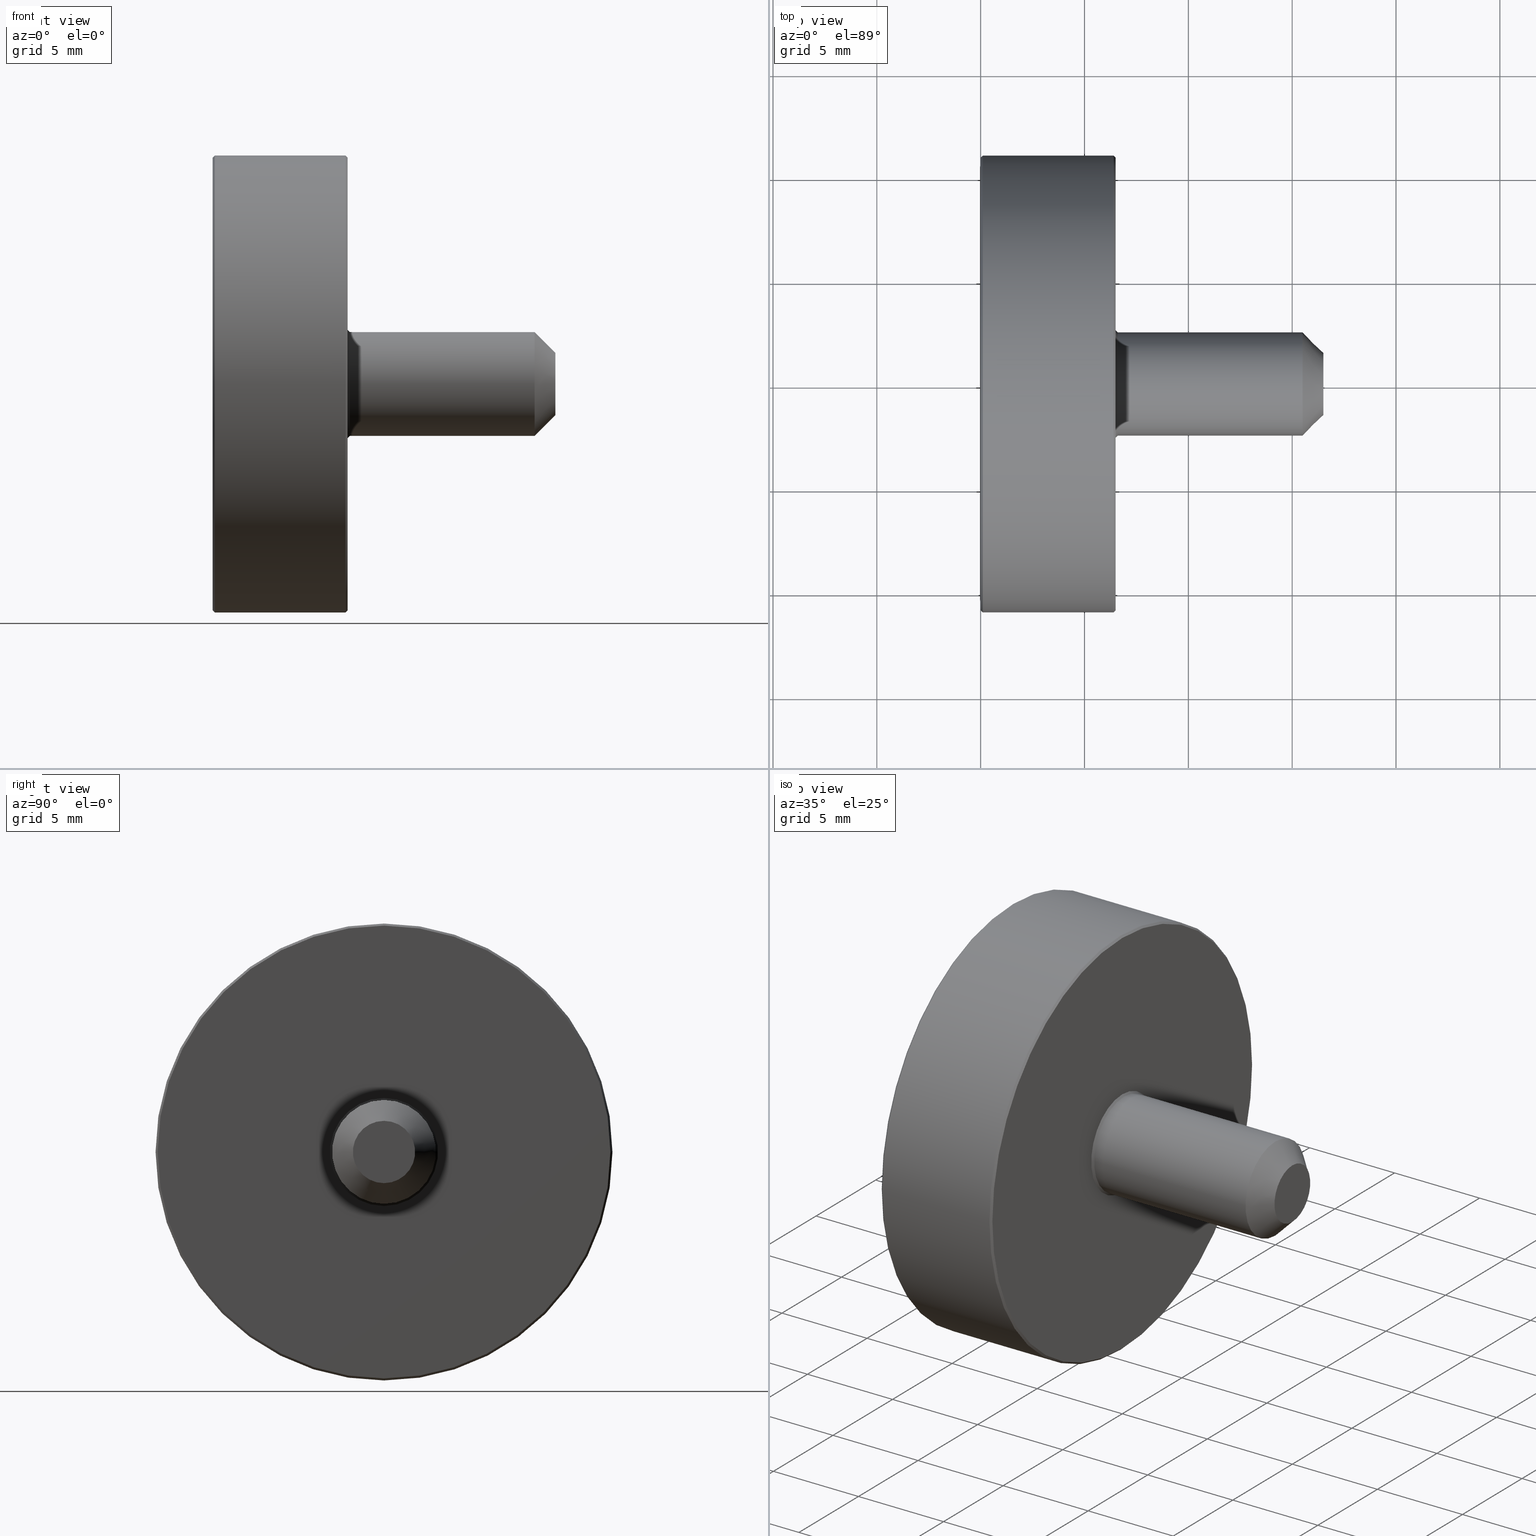
[diagram: canonical four-view strip — front | top / right | iso, engineering-drawing reading convention]
A machine part, canonical four-view strip (front | top / right | iso — engineering-drawing reading convention). The complete STEP part file that produces these views, byte-faithful:
ISO-10303-21;
HEADER;
/* Generated by software containing ST-Developer
 * from STEP Tools, Inc. (www.steptools.com) 
 */

FILE_DESCRIPTION(
/* description */ ('RISCONTRO C/MAGNETE NEO 12X2mm'),
/* implementation_level */ '2;1');

FILE_NAME(
/* name */ 
'Q:\\Catalogo\\2_Accessori Dierre\\Per Download Web e catalogo cartace
o\\CATALOGO ACCESSORI PER RIPARI\\PAGINA 68\\CMGRS0000001.stp',
/* time_stamp */ '2018-11-07T12:30:45+01:00',
/* author */ ('fzagni'),
/* organization */ (''),
/* preprocessor_version */ 'ST-DEVELOPER v16.1',
/* originating_system */ 'Autodesk Inventor 2016',
/* authorisation */ '');

FILE_SCHEMA (('AUTOMOTIVE_DESIGN { 1 0 10303 214 3 1 1 }'));
ENDSEC;

DATA;
#10=MECHANICAL_DESIGN_GEOMETRIC_PRESENTATION_REPRESENTATION('',(#13),#229);
#11=SHAPE_REPRESENTATION_RELATIONSHIP('SRR','None',#238,#12);
#12=ADVANCED_BREP_SHAPE_REPRESENTATION('',(#14),#228);
#13=STYLED_ITEM('',(#247),#14);
#14=MANIFOLD_SOLID_BREP('Solido1',#127);
#15=CYLINDRICAL_SURFACE('',#134,2.5);
#16=CYLINDRICAL_SURFACE('',#136,6.);
#17=CYLINDRICAL_SURFACE('',#142,11.);
#18=PLANE('',#132);
#19=PLANE('',#139);
#20=PLANE('',#146);
#21=PLANE('',#149);
#22=FACE_BOUND('',#43,.T.);
#23=FACE_BOUND('',#45,.T.);
#24=FACE_BOUND('',#47,.T.);
#25=FACE_BOUND('',#49,.T.);
#26=FACE_BOUND('',#52,.T.);
#27=FACE_BOUND('',#54,.T.);
#28=FACE_BOUND('',#56,.T.);
#29=FACE_BOUND('',#58,.T.);
#30=FACE_BOUND('',#60,.T.);
#31=FACE_OUTER_BOUND('',#42,.T.);
#32=FACE_OUTER_BOUND('',#44,.T.);
#33=FACE_OUTER_BOUND('',#46,.T.);
#34=FACE_OUTER_BOUND('',#48,.T.);
#35=FACE_OUTER_BOUND('',#50,.T.);
#36=FACE_OUTER_BOUND('',#51,.T.);
#37=FACE_OUTER_BOUND('',#53,.T.);
#38=FACE_OUTER_BOUND('',#55,.T.);
#39=FACE_OUTER_BOUND('',#57,.T.);
#40=FACE_OUTER_BOUND('',#59,.T.);
#41=FACE_OUTER_BOUND('',#61,.T.);
#42=EDGE_LOOP('',(#92));
#43=EDGE_LOOP('',(#93));
#44=EDGE_LOOP('',(#94));
#45=EDGE_LOOP('',(#95));
#46=EDGE_LOOP('',(#96));
#47=EDGE_LOOP('',(#97));
#48=EDGE_LOOP('',(#98));
#49=EDGE_LOOP('',(#99));
#50=EDGE_LOOP('',(#100));
#51=EDGE_LOOP('',(#101));
#52=EDGE_LOOP('',(#102));
#53=EDGE_LOOP('',(#103));
#54=EDGE_LOOP('',(#104));
#55=EDGE_LOOP('',(#105));
#56=EDGE_LOOP('',(#106));
#57=EDGE_LOOP('',(#107));
#58=EDGE_LOOP('',(#108));
#59=EDGE_LOOP('',(#109));
#60=EDGE_LOOP('',(#110));
#61=EDGE_LOOP('',(#111));
#62=CIRCLE('',#130,2.5);
#63=CIRCLE('',#131,2.6);
#64=CIRCLE('',#133,10.9);
#65=CIRCLE('',#135,2.5);
#66=CIRCLE('',#137,6.);
#67=CIRCLE('',#138,6.);
#68=CIRCLE('',#141,11.);
#69=CIRCLE('',#143,11.);
#70=CIRCLE('',#145,10.9);
#71=CIRCLE('',#148,1.5);
#72=VERTEX_POINT('',#196);
#73=VERTEX_POINT('',#198);
#74=VERTEX_POINT('',#201);
#75=VERTEX_POINT('',#204);
#76=VERTEX_POINT('',#207);
#77=VERTEX_POINT('',#209);
#78=VERTEX_POINT('',#213);
#79=VERTEX_POINT('',#216);
#80=VERTEX_POINT('',#219);
#81=VERTEX_POINT('',#223);
#82=EDGE_CURVE('',#72,#72,#62,.T.);
#83=EDGE_CURVE('',#73,#73,#63,.T.);
#84=EDGE_CURVE('',#74,#74,#64,.T.);
#85=EDGE_CURVE('',#75,#75,#65,.T.);
#86=EDGE_CURVE('',#76,#76,#66,.T.);
#87=EDGE_CURVE('',#77,#77,#67,.T.);
#88=EDGE_CURVE('',#78,#78,#68,.T.);
#89=EDGE_CURVE('',#79,#79,#69,.T.);
#90=EDGE_CURVE('',#80,#80,#70,.T.);
#91=EDGE_CURVE('',#81,#81,#71,.T.);
#92=ORIENTED_EDGE('',*,*,#82,.T.);
#93=ORIENTED_EDGE('',*,*,#83,.T.);
#94=ORIENTED_EDGE('',*,*,#84,.F.);
#95=ORIENTED_EDGE('',*,*,#83,.F.);
#96=ORIENTED_EDGE('',*,*,#85,.F.);
#97=ORIENTED_EDGE('',*,*,#82,.F.);
#98=ORIENTED_EDGE('',*,*,#86,.T.);
#99=ORIENTED_EDGE('',*,*,#87,.F.);
#100=ORIENTED_EDGE('',*,*,#86,.F.);
#101=ORIENTED_EDGE('',*,*,#88,.T.);
#102=ORIENTED_EDGE('',*,*,#84,.T.);
#103=ORIENTED_EDGE('',*,*,#89,.F.);
#104=ORIENTED_EDGE('',*,*,#88,.F.);
#105=ORIENTED_EDGE('',*,*,#89,.T.);
#106=ORIENTED_EDGE('',*,*,#90,.T.);
#107=ORIENTED_EDGE('',*,*,#90,.F.);
#108=ORIENTED_EDGE('',*,*,#87,.T.);
#109=ORIENTED_EDGE('',*,*,#85,.T.);
#110=ORIENTED_EDGE('',*,*,#91,.T.);
#111=ORIENTED_EDGE('',*,*,#91,.F.);
#112=CONICAL_SURFACE('',#129,2.55,45.);
#113=CONICAL_SURFACE('',#140,10.95,45.);
#114=CONICAL_SURFACE('',#144,10.95,45.);
#115=CONICAL_SURFACE('',#147,2.,45.);
#116=ADVANCED_FACE('',(#31,#22),#112,.T.);
#117=ADVANCED_FACE('',(#32,#23),#18,.T.);
#118=ADVANCED_FACE('',(#33,#24),#15,.T.);
#119=ADVANCED_FACE('',(#34,#25),#16,.F.);
#120=ADVANCED_FACE('',(#35),#19,.F.);
#121=ADVANCED_FACE('',(#36,#26),#113,.T.);
#122=ADVANCED_FACE('',(#37,#27),#17,.T.);
#123=ADVANCED_FACE('',(#38,#28),#114,.T.);
#124=ADVANCED_FACE('',(#39,#29),#20,.F.);
#125=ADVANCED_FACE('',(#40,#30),#115,.T.);
#126=ADVANCED_FACE('',(#41),#21,.T.);
#127=CLOSED_SHELL('',(#116,#117,#118,#119,#120,#121,#122,#123,#124,#125,
#126));
#128=AXIS2_PLACEMENT_3D('placement',#194,#150,#151);
#129=AXIS2_PLACEMENT_3D('',#195,#152,#153);
#130=AXIS2_PLACEMENT_3D('',#197,#154,#155);
#131=AXIS2_PLACEMENT_3D('',#199,#156,#157);
#132=AXIS2_PLACEMENT_3D('',#200,#158,#159);
#133=AXIS2_PLACEMENT_3D('',#202,#160,#161);
#134=AXIS2_PLACEMENT_3D('',#203,#162,#163);
#135=AXIS2_PLACEMENT_3D('',#205,#164,#165);
#136=AXIS2_PLACEMENT_3D('',#206,#166,#167);
#137=AXIS2_PLACEMENT_3D('',#208,#168,#169);
#138=AXIS2_PLACEMENT_3D('',#210,#170,#171);
#139=AXIS2_PLACEMENT_3D('',#211,#172,#173);
#140=AXIS2_PLACEMENT_3D('',#212,#174,#175);
#141=AXIS2_PLACEMENT_3D('',#214,#176,#177);
#142=AXIS2_PLACEMENT_3D('',#215,#178,#179);
#143=AXIS2_PLACEMENT_3D('',#217,#180,#181);
#144=AXIS2_PLACEMENT_3D('',#218,#182,#183);
#145=AXIS2_PLACEMENT_3D('',#220,#184,#185);
#146=AXIS2_PLACEMENT_3D('',#221,#186,#187);
#147=AXIS2_PLACEMENT_3D('',#222,#188,#189);
#148=AXIS2_PLACEMENT_3D('',#224,#190,#191);
#149=AXIS2_PLACEMENT_3D('',#225,#192,#193);
#150=DIRECTION('axis',(0.,0.,1.));
#151=DIRECTION('refdir',(1.,0.,0.));
#152=DIRECTION('center_axis',(-1.,0.,0.));
#153=DIRECTION('ref_axis',(0.,0.,1.));
#154=DIRECTION('center_axis',(-1.,0.,0.));
#155=DIRECTION('ref_axis',(0.,0.,1.));
#156=DIRECTION('center_axis',(1.,0.,0.));
#157=DIRECTION('ref_axis',(0.,0.,1.));
#158=DIRECTION('center_axis',(1.,0.,0.));
#159=DIRECTION('ref_axis',(0.,0.,-1.));
#160=DIRECTION('center_axis',(-1.,0.,0.));
#161=DIRECTION('ref_axis',(0.,-1.,0.));
#162=DIRECTION('center_axis',(1.,0.,0.));
#163=DIRECTION('ref_axis',(0.,0.,1.));
#164=DIRECTION('center_axis',(1.,0.,0.));
#165=DIRECTION('ref_axis',(0.,0.,1.));
#166=DIRECTION('center_axis',(1.,0.,0.));
#167=DIRECTION('ref_axis',(0.,0.,-1.));
#168=DIRECTION('center_axis',(1.,0.,0.));
#169=DIRECTION('ref_axis',(0.,0.,-1.));
#170=DIRECTION('center_axis',(1.,0.,0.));
#171=DIRECTION('ref_axis',(0.,0.,-1.));
#172=DIRECTION('center_axis',(1.,0.,0.));
#173=DIRECTION('ref_axis',(0.,0.,-1.));
#174=DIRECTION('center_axis',(-1.,0.,0.));
#175=DIRECTION('ref_axis',(0.,-1.,0.));
#176=DIRECTION('center_axis',(1.,0.,0.));
#177=DIRECTION('ref_axis',(0.,-1.,0.));
#178=DIRECTION('center_axis',(1.,0.,0.));
#179=DIRECTION('ref_axis',(0.,-1.,0.));
#180=DIRECTION('center_axis',(-1.,0.,0.));
#181=DIRECTION('ref_axis',(0.,-1.,0.));
#182=DIRECTION('center_axis',(1.,0.,0.));
#183=DIRECTION('ref_axis',(0.,-1.,0.));
#184=DIRECTION('center_axis',(1.,0.,0.));
#185=DIRECTION('ref_axis',(0.,-1.,0.));
#186=DIRECTION('center_axis',(1.,0.,0.));
#187=DIRECTION('ref_axis',(0.,0.,-1.));
#188=DIRECTION('center_axis',(-1.,0.,0.));
#189=DIRECTION('ref_axis',(0.,0.,1.));
#190=DIRECTION('center_axis',(-1.,0.,0.));
#191=DIRECTION('ref_axis',(0.,0.,1.));
#192=DIRECTION('center_axis',(1.,0.,0.));
#193=DIRECTION('ref_axis',(0.,0.,-1.));
#194=CARTESIAN_POINT('',(0.,0.,0.));
#195=CARTESIAN_POINT('Origin',(6.55,0.,0.));
#196=CARTESIAN_POINT('',(6.6,-3.06161699786838E-16,-2.5));
#197=CARTESIAN_POINT('Origin',(6.6,0.,0.));
#198=CARTESIAN_POINT('',(6.5,3.18408167778312E-16,-2.6));
#199=CARTESIAN_POINT('Origin',(6.5,0.,0.));
#200=CARTESIAN_POINT('Origin',(6.5,-4.48690509505221E-16,1.6821560979169E-16));
#201=CARTESIAN_POINT('',(6.5,10.9,-1.33486501107062E-15));
#202=CARTESIAN_POINT('Origin',(6.5,0.,0.));
#203=CARTESIAN_POINT('Origin',(6.5,0.,0.));
#204=CARTESIAN_POINT('',(15.5,3.06161699786838E-16,-2.5));
#205=CARTESIAN_POINT('Origin',(15.5,0.,0.));
#206=CARTESIAN_POINT('Origin',(0.,0.,0.));
#207=CARTESIAN_POINT('',(0.05,7.34788079488412E-16,6.));
#208=CARTESIAN_POINT('Origin',(0.05,0.,0.));
#209=CARTESIAN_POINT('',(0.,7.34788079488412E-16,6.));
#210=CARTESIAN_POINT('Origin',(0.,0.,0.));
#211=CARTESIAN_POINT('Origin',(0.05,-1.54197642309049E-16,-3.69627624575467E-16));
#212=CARTESIAN_POINT('Origin',(6.45,0.,0.));
#213=CARTESIAN_POINT('',(6.4,11.,1.34711147906209E-15));
#214=CARTESIAN_POINT('Origin',(6.4,0.,0.));
#215=CARTESIAN_POINT('Origin',(0.,0.,0.));
#216=CARTESIAN_POINT('',(0.1,11.,-1.34711147906209E-15));
#217=CARTESIAN_POINT('Origin',(0.1,0.,0.));
#218=CARTESIAN_POINT('Origin',(0.05,0.,0.));
#219=CARTESIAN_POINT('',(0.,10.9,1.33486501107062E-15));
#220=CARTESIAN_POINT('Origin',(0.,0.,0.));
#221=CARTESIAN_POINT('Origin',(0.,-4.48690509505221E-16,1.6821560979169E-16));
#222=CARTESIAN_POINT('Origin',(16.,0.,0.));
#223=CARTESIAN_POINT('',(16.5,-1.83697019872103E-16,-1.5));
#224=CARTESIAN_POINT('Origin',(16.5,0.,0.));
#225=CARTESIAN_POINT('Origin',(16.5,4.62592926927149E-17,1.18032060367666E-16));
#226=UNCERTAINTY_MEASURE_WITH_UNIT(LENGTH_MEASURE(0.01),#230,
'DISTANCE_ACCURACY_VALUE',
'Maximum model space distance between geometric entities at asserted c
onnectivities');
#227=UNCERTAINTY_MEASURE_WITH_UNIT(LENGTH_MEASURE(1.E-6),#230,
'DISTANCE_ACCURACY_VALUE',
'Maximum model space distance between geometric entities at asserted c
onnectivities');
#228=(
GEOMETRIC_REPRESENTATION_CONTEXT(3)
GLOBAL_UNCERTAINTY_ASSIGNED_CONTEXT((#226))
GLOBAL_UNIT_ASSIGNED_CONTEXT((#230,#233,#231))
REPRESENTATION_CONTEXT('','3D')
);
#229=(
GEOMETRIC_REPRESENTATION_CONTEXT(3)
GLOBAL_UNCERTAINTY_ASSIGNED_CONTEXT((#227))
GLOBAL_UNIT_ASSIGNED_CONTEXT((#230,#233,#231))
REPRESENTATION_CONTEXT('','3D')
);
#230=(
LENGTH_UNIT()
NAMED_UNIT(*)
SI_UNIT(.MILLI.,.METRE.)
);
#231=(
NAMED_UNIT(*)
SI_UNIT($,.STERADIAN.)
SOLID_ANGLE_UNIT()
);
#232=DIMENSIONAL_EXPONENTS(0.,0.,0.,0.,0.,0.,0.);
#233=(
CONVERSION_BASED_UNIT('degree',#235)
NAMED_UNIT(#232)
PLANE_ANGLE_UNIT()
);
#234=(
NAMED_UNIT(*)
PLANE_ANGLE_UNIT()
SI_UNIT($,.RADIAN.)
);
#235=PLANE_ANGLE_MEASURE_WITH_UNIT(PLANE_ANGLE_MEASURE(0.01745329252),#234);
#236=SHAPE_DEFINITION_REPRESENTATION(#237,#238);
#237=PRODUCT_DEFINITION_SHAPE('',$,#240);
#238=SHAPE_REPRESENTATION('',(#128),#228);
#239=PRODUCT_DEFINITION_CONTEXT('part definition',#244,'design');
#240=PRODUCT_DEFINITION('19.181.00','19.181.00',#241,#239);
#241=PRODUCT_DEFINITION_FORMATION('','A',#246);
#242=PRODUCT_RELATED_PRODUCT_CATEGORY('19.181.00','19.181.00',(#246));
#243=APPLICATION_PROTOCOL_DEFINITION('international standard',
'automotive_design',2009,#244);
#244=APPLICATION_CONTEXT(
'Core Data for Automotive Mechanical Design Process');
#245=PRODUCT_CONTEXT('part definition',#244,'mechanical');
#246=PRODUCT('19.181.00','19.181.00',$,(#245));
#247=PRESENTATION_STYLE_ASSIGNMENT((#248));
#248=SURFACE_STYLE_USAGE(.BOTH.,#249);
#249=SURFACE_SIDE_STYLE('',(#250));
#250=SURFACE_STYLE_FILL_AREA(#251);
#251=FILL_AREA_STYLE('',(#252));
#252=FILL_AREA_STYLE_COLOUR('',#253);
#253=COLOUR_RGB('',0.745098039215686,0.737254901960784,0.729411764705882);
ENDSEC;
END-ISO-10303-21;
